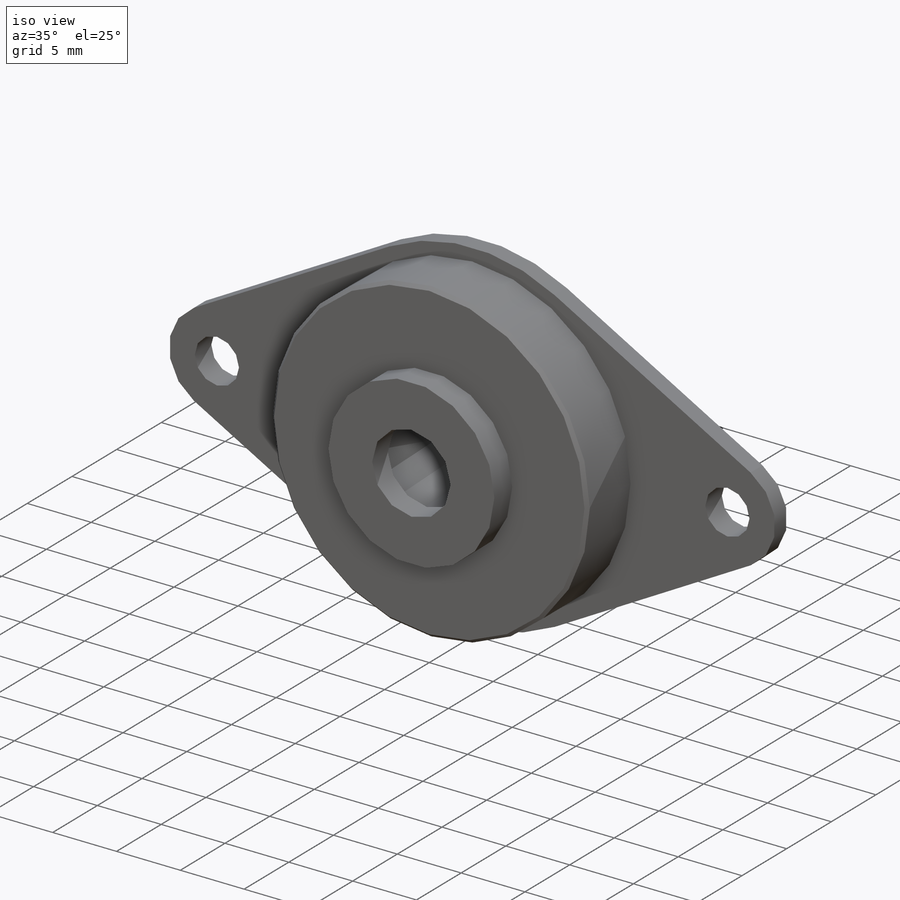
[diagram: iso view]
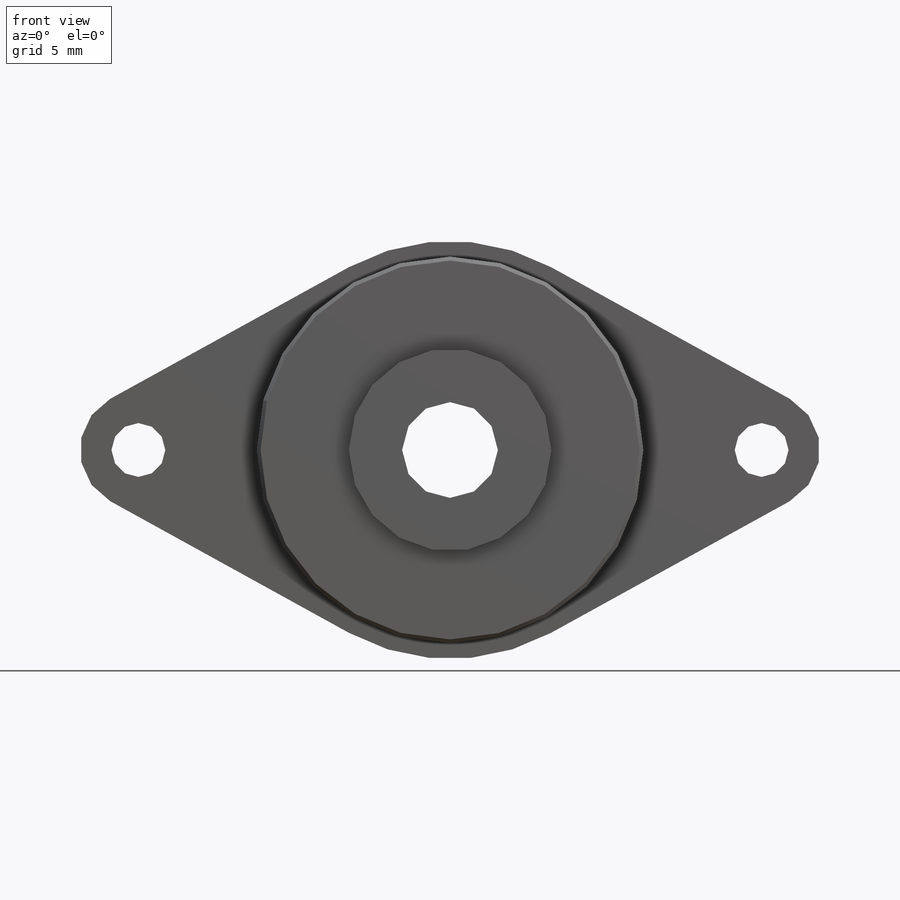
[diagram: front view]
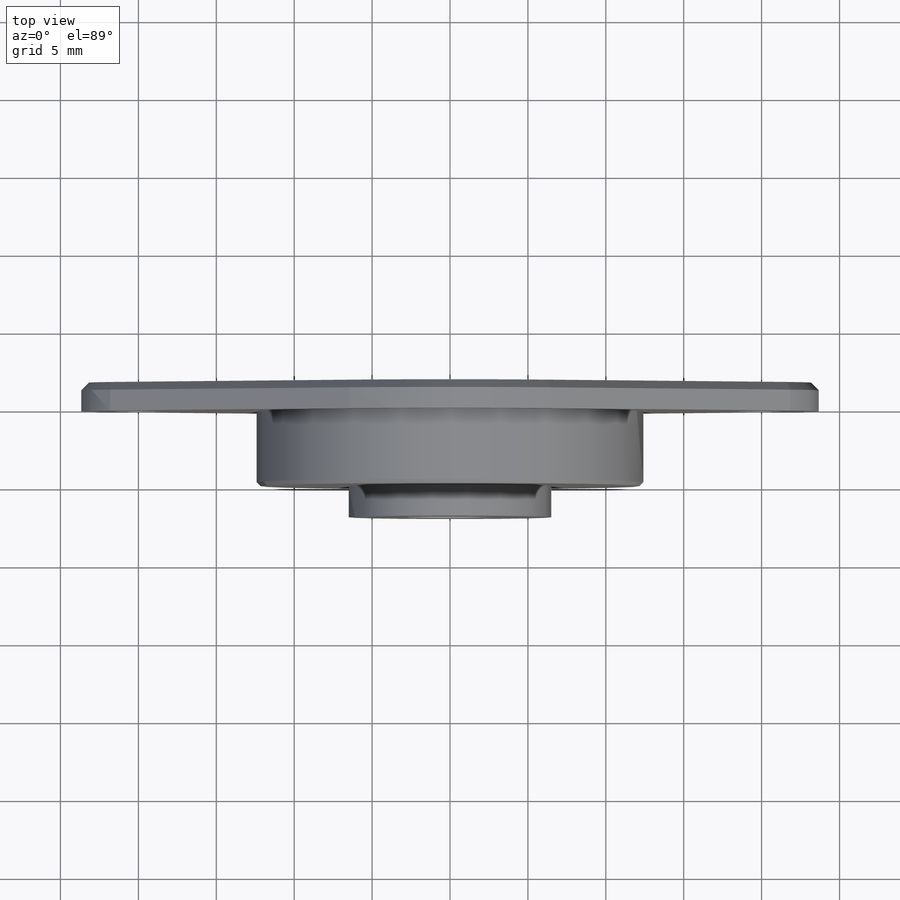
[diagram: top view]
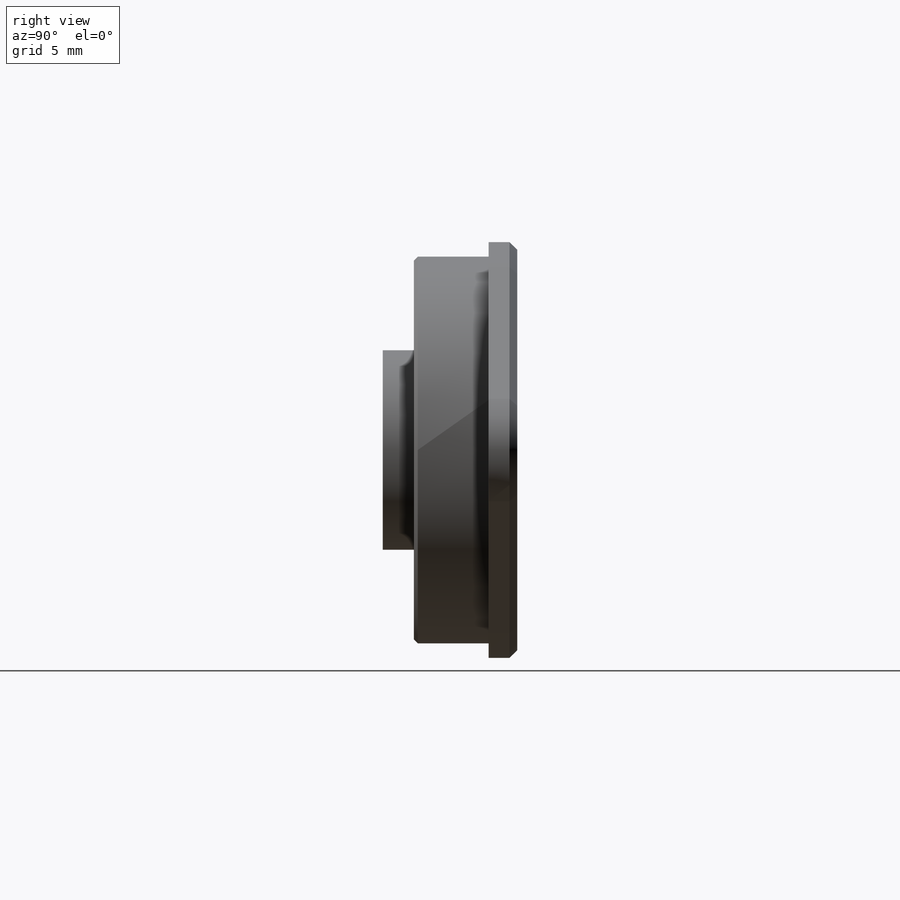
[diagram: right view]
SOLIDWORKS PART (.sldprt)
format: sldprt  version: not decoded by parser v0  size: 302,080 bytes
history: native  units: mm
features: sketch x7, extrude x2, hole x2, chamfer x2, material x1, revolve x1, mirror x1 (+11 scaffold rows collapsed)
feature tree (27):
  scaffold x11  (default folders/planes/origin — collapsed)
  material  "Brass"
  sketch  "Sketch1"  dims[c1.D1=~127.419906mm c1.D2=18.8mm c1.D3=19.8mm c2.D2=1.0mm c2.D1=2.0mm c2.D4=2.5mm c2.D5=2.5mm c2.D3=19.6mm c3.D4=1.0mm c3.D6=~1.082619mm c3.D7=9.9mm c4.D6=1.5mm c4.D1=1.84mm c4.D2=4.8mm c4.D3=24.8158mm c4.D4=1.0mm]
  revolve  "Revolve1"  Angle=360deg
  sketch  "Sketch2"  dims[D1=13.0mm]
  extrude  "Boss-Extrude1"  Depth=2mm
  sketch  "Sketch3"  dims[D1=12.7mm D2=7.5mm D3=40.0mm]
  extrude  "Boss-Extrude2"  [1 undecoded]
  hole  "#4 Clearance Hole1"  Diameter=3.4544mm Depth=15mm
  sketch  "Sketch5"
  sketch  "Sketch4"  dims[hole-wizard template sketch: 47 standard entries collapsed; hole parameters kept: c15.Hole Depth=15.0mm c15.D3=~14.816244mm c15.Drill Angle=118.0deg]
  mirror  "Mirror1"
  hole  "1/16 NPT Tapped Hole2"  Diameter=6.1468mm Depth=8.64mm
  sketch  "Sketch9"
  sketch  "Sketch8"  dims[hole-wizard template sketch: 39 standard entries collapsed; hole parameters kept: c10.Thru Tap Drill Dia.=6.1468mm c10.Thru Tap Drill Depth=8.64mm c10.Thread Dia.=~7.937754mm c10.D4=~21.335028mm c10.Thread Angle=3.43deg c10.Thread Depth=6.89mm c10.Near C'Sink Dia.=~9.207754mm c10.D7=~2.053058mm c10.Near C'Sink Angle=90.0deg]
  chamfer  "Chamfer1"  Distance=0.25mm Angle=45deg
  chamfer  "Chamfer2"  Distance=0.5mm Angle=45deg
decode coverage: 11 of 15 modeling features carry decoded parameters
note: ~ marks probable driven/reference dimensions
note: 1 parameter value undecoded
note: suppression state not decoded; provenance and decode notes live in map.json
